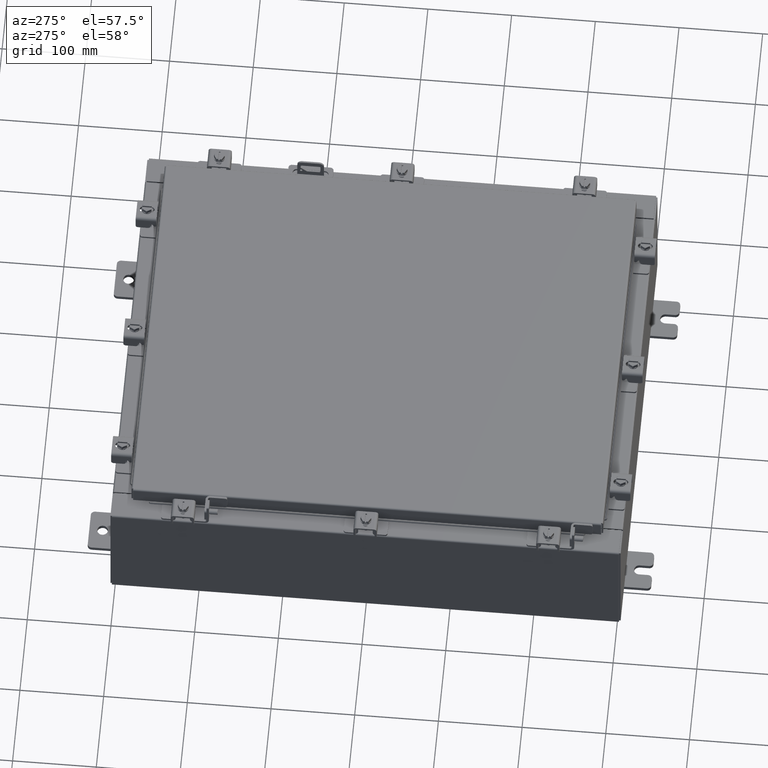
[diagram: clean part render]
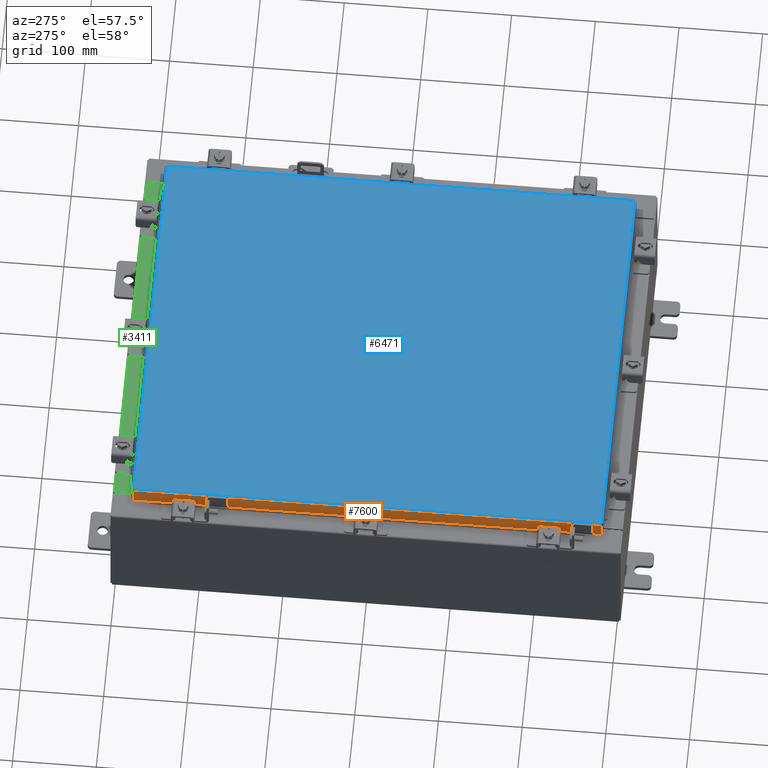
[diagram: same view with three faces highlighted in distinct colors, each labeled with its STEP entity id]
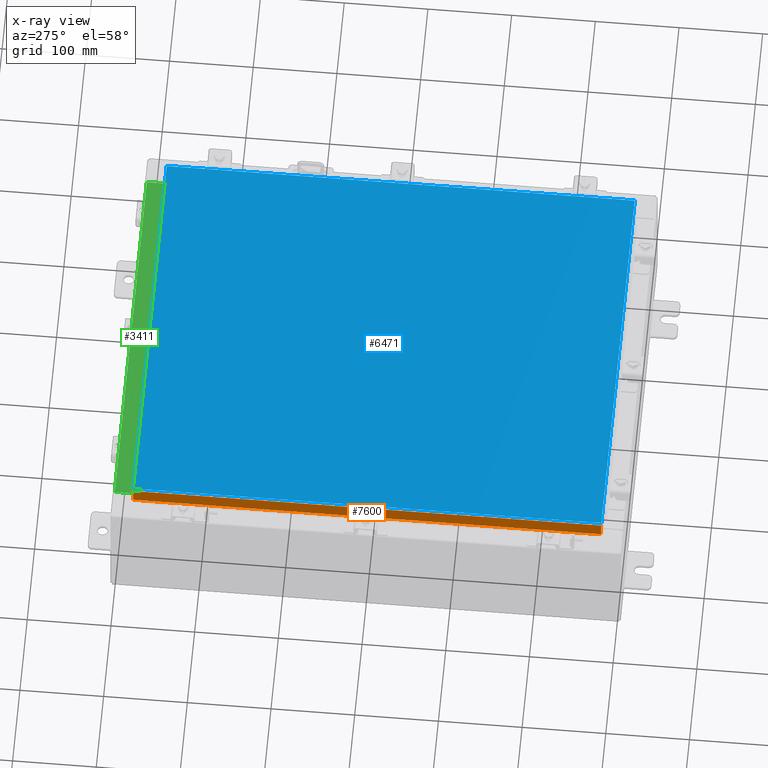
[diagram: x-ray of the same camera — body ghosted, the three highlighted faces saturated]
A machine part, auxiliary view with three faces highlighted in distinct colors.
The next image is the same camera in x-ray (body ghosted, the three faces saturated) — at least one of them is partly hidden behind the body in this view.
Their STEP definitions:

[orange] entity #7600 — the highlighted planar face has unit normal (1, 0, -0).
#241 = LINE ( 'NONE', #5001, #8937 ) ;
#369 = ORIENTED_EDGE ( 'NONE', *, *, #12093, .F. ) ;
#460 = FACE_OUTER_BOUND ( 'NONE', #7605, .T. ) ;
#490 = VERTEX_POINT ( 'NONE', #21777 ) ;
#1094 = VECTOR ( 'NONE', #21379, 39.37007874015748100 ) ;
#1200 = EDGE_CURVE ( 'NONE', #12030, #490, #4893, .T. ) ;
#1482 = EDGE_CURVE ( 'NONE', #16704, #4294, #2429, .T. ) ;
#1925 = EDGE_CURVE ( 'NONE', #22086, #15164, #6776, .T. ) ;
#2429 = LINE ( 'NONE', #11508, #4075 ) ;
#2770 = LINE ( 'NONE', #7666, #16131 ) ;
#4075 = VECTOR ( 'NONE', #11801, 39.37007874015748100 ) ;
#4294 = VERTEX_POINT ( 'NONE', #4783 ) ;
#4783 = CARTESIAN_POINT ( 'NONE',  ( -9.078000000000001200, 11.00515786437627100, -0.8499999999999970900 ) ) ;
#4893 = LINE ( 'NONE', #12579, #8975 ) ;
#5001 = CARTESIAN_POINT ( 'NONE',  ( -9.077999999999999400, -11.09400000000000100, -0.08770000000000007000 ) ) ;
#5713 = EDGE_CURVE ( 'NONE', #16704, #22086, #241, .T. ) ;
#6658 = ORIENTED_EDGE ( 'NONE', *, *, #1200, .F. ) ;
#6776 = LINE ( 'NONE', #14459, #1094 ) ;
#7600 = ADVANCED_FACE ( 'NONE', ( #460 ), #19090, .F. ) ;
#7605 = EDGE_LOOP ( 'NONE', ( #17006, #15470, #369, #6658, #13735, #20817 ) ) ;
#7666 = CARTESIAN_POINT ( 'NONE',  ( -9.078000000000001200, -11.09400000000000100, -0.8499999999999996400 ) ) ;
#7738 = DIRECTION ( 'NONE',  ( 4.379057701015054300E-047, 1.000000000000000000, 1.169666303398706600E-016 ) ) ;
#8136 = DIRECTION ( 'NONE',  ( -2.818880942772360100E-015, 0.0000000000000000000, -1.000000000000000000 ) ) ;
#8167 = CARTESIAN_POINT ( 'NONE',  ( -9.078000000000001200, -11.00515786437626700, -0.8499999999999996400 ) ) ;
#8937 = VECTOR ( 'NONE', #20702, 39.37007874015748100 ) ;
#8975 = VECTOR ( 'NONE', #16174, 39.37007874015748100 ) ;
#10373 = DIRECTION ( 'NONE',  ( 1.000000000000000000, 3.297150052053607100E-031, -2.818880942772360100E-015 ) ) ;
#10610 = AXIS2_PLACEMENT_3D ( 'NONE', #17324, #10373, #8136 ) ;
#11508 = CARTESIAN_POINT ( 'NONE',  ( -9.077999999999999400, 11.00515786437626700, 1.026992214834840400E-013 ) ) ;
#11801 = DIRECTION ( 'NONE',  ( -2.818880942772360100E-015, 6.982962677686267500E-015, -1.000000000000000000 ) ) ;
#12030 = VERTEX_POINT ( 'NONE', #18042 ) ;
#12093 = EDGE_CURVE ( 'NONE', #490, #4294, #2770, .T. ) ;
#12579 = CARTESIAN_POINT ( 'NONE',  ( -9.077999999999994100, -10.25515786437626900, -0.8500000000000005300 ) ) ;
#13735 = ORIENTED_EDGE ( 'NONE', *, *, #21028, .F. ) ;
#14459 = CARTESIAN_POINT ( 'NONE',  ( -9.077999999999999400, -11.00515786437627100, -0.07469999999999978000 ) ) ;
#15164 = VERTEX_POINT ( 'NONE', #8167 ) ;
#15461 = CARTESIAN_POINT ( 'NONE',  ( -9.077999999999999400, 11.00515786437626900, -0.08770000000000007000 ) ) ;
#15470 = ORIENTED_EDGE ( 'NONE', *, *, #1482, .T. ) ;
#16131 = VECTOR ( 'NONE', #7738, 39.37007874015748100 ) ;
#16174 = DIRECTION ( 'NONE',  ( -0.0000000000000000000, 1.000000000000000000, -0.0000000000000000000 ) ) ;
#16704 = VERTEX_POINT ( 'NONE', #15461 ) ;
#17006 = ORIENTED_EDGE ( 'NONE', *, *, #5713, .F. ) ;
#17324 = CARTESIAN_POINT ( 'NONE',  ( -9.077999999999999400, -2.993152817254264100E-030, 2.585061485449906600E-014 ) ) ;
#18042 = CARTESIAN_POINT ( 'NONE',  ( -9.077999999999994100, -10.25515786437626900, -0.8500000000000005300 ) ) ;
#19010 = VECTOR ( 'NONE', #22467, 39.37007874015748100 ) ;
#19090 = PLANE ( 'NONE',  #10610 ) ;
#20107 = LINE ( 'NONE', #20707, #19010 ) ;
#20369 = CARTESIAN_POINT ( 'NONE',  ( -9.077999999999999400, -11.00515786437626900, -0.08770000000000007000 ) ) ;
#20702 = DIRECTION ( 'NONE',  ( 3.297150052053607100E-031, -1.000000000000000000, -8.987264781119274900E-046 ) ) ;
#20707 = CARTESIAN_POINT ( 'NONE',  ( -9.078000000000001200, -11.09400000000000100, -0.8499999999999996400 ) ) ;
#20817 = ORIENTED_EDGE ( 'NONE', *, *, #1925, .F. ) ;
#21028 = EDGE_CURVE ( 'NONE', #15164, #12030, #20107, .T. ) ;
#21379 = DIRECTION ( 'NONE',  ( -2.818880942772360100E-015, 6.982962677686267500E-015, -1.000000000000000000 ) ) ;
#21777 = CARTESIAN_POINT ( 'NONE',  ( -9.077999999999994100, 10.25515786437626900, -0.8500000000000005300 ) ) ;
#22086 = VERTEX_POINT ( 'NONE', #20369 ) ;
#22467 = DIRECTION ( 'NONE',  ( 4.379057701015054300E-047, 1.000000000000000000, 1.169666303398706600E-016 ) ) ;

[blue] entity #6471 — the highlighted planar face has unit normal (0, 0, -1).
#155 = CARTESIAN_POINT ( 'NONE',  ( -8.990299999999999500, 11.00630000000000100, -2.048885995248197400E-016 ) ) ;
#3018 = AXIS2_PLACEMENT_3D ( 'NONE', #5051, #3353, #15566 ) ;
#3353 = DIRECTION ( 'NONE',  ( 0.0000000000000000000, 0.0000000000000000000, -1.000000000000000000 ) ) ;
#3742 = EDGE_CURVE ( 'NONE', #4213, #4799, #5200, .T. ) ;
#4213 = VERTEX_POINT ( 'NONE', #9310 ) ;
#4304 = LINE ( 'NONE', #16803, #8916 ) ;
#4638 = CARTESIAN_POINT ( 'NONE',  ( -8.990299999999999500, -11.00630000000000100, -2.048885995248197400E-016 ) ) ;
#4799 = VERTEX_POINT ( 'NONE', #19783 ) ;
#5051 = CARTESIAN_POINT ( 'NONE',  ( 0.0000000000000000000, 0.0000000000000000000, 0.0000000000000000000 ) ) ;
#5200 = LINE ( 'NONE', #4638, #13932 ) ;
#5459 = VECTOR ( 'NONE', #17495, 39.37007874015748100 ) ;
#6009 = CARTESIAN_POINT ( 'NONE',  ( -8.990299999999999500, 11.00630000000000100, -2.048885995248197400E-016 ) ) ;
#6288 = EDGE_CURVE ( 'NONE', #4799, #6451, #4304, .T. ) ;
#6387 = DIRECTION ( 'NONE',  ( 1.000000000000000000, -0.0000000000000000000, -0.0000000000000000000 ) ) ;
#6451 = VERTEX_POINT ( 'NONE', #12050 ) ;
#6471 = ADVANCED_FACE ( 'NONE', ( #10818 ), #13817, .F. ) ;
#8916 = VECTOR ( 'NONE', #11606, 39.37007874015748100 ) ;
#9310 = CARTESIAN_POINT ( 'NONE',  ( -8.990299999999999500, -11.00630000000000100, -2.048885995248197400E-016 ) ) ;
#10333 = CARTESIAN_POINT ( 'NONE',  ( 8.990299999999999500, 11.00630000000000000, -2.048885995248197400E-016 ) ) ;
#10818 = FACE_OUTER_BOUND ( 'NONE', #14401, .T. ) ;
#11606 = DIRECTION ( 'NONE',  ( 0.0000000000000000000, 1.000000000000000000, 0.0000000000000000000 ) ) ;
#12050 = CARTESIAN_POINT ( 'NONE',  ( 8.990299999999999500, 11.00630000000000000, -2.048885995248197400E-016 ) ) ;
#12069 = VERTEX_POINT ( 'NONE', #6009 ) ;
#13817 = PLANE ( 'NONE',  #3018 ) ;
#13932 = VECTOR ( 'NONE', #6387, 39.37007874015748100 ) ;
#14401 = EDGE_LOOP ( 'NONE', ( #21981, #22430, #21329, #19484 ) ) ;
#15566 = DIRECTION ( 'NONE',  ( -1.000000000000000000, 0.0000000000000000000, -0.0000000000000000000 ) ) ;
#16741 = EDGE_CURVE ( 'NONE', #6451, #12069, #18388, .T. ) ;
#16803 = CARTESIAN_POINT ( 'NONE',  ( 8.990299999999999500, -11.00630000000000000, -7.512581982576723400E-016 ) ) ;
#17495 = DIRECTION ( 'NONE',  ( 0.0000000000000000000, -1.000000000000000000, 0.0000000000000000000 ) ) ;
#17840 = VECTOR ( 'NONE', #22557, 39.37007874015748100 ) ;
#18388 = LINE ( 'NONE', #10333, #17840 ) ;
#19069 = EDGE_CURVE ( 'NONE', #12069, #4213, #20143, .T. ) ;
#19484 = ORIENTED_EDGE ( 'NONE', *, *, #19069, .T. ) ;
#19783 = CARTESIAN_POINT ( 'NONE',  ( 8.990299999999999500, -11.00630000000000000, -7.512581982576723400E-016 ) ) ;
#20143 = LINE ( 'NONE', #155, #5459 ) ;
#21329 = ORIENTED_EDGE ( 'NONE', *, *, #16741, .T. ) ;
#21981 = ORIENTED_EDGE ( 'NONE', *, *, #3742, .T. ) ;
#22430 = ORIENTED_EDGE ( 'NONE', *, *, #6288, .T. ) ;
#22557 = DIRECTION ( 'NONE',  ( -1.000000000000000000, -0.0000000000000000000, -0.0000000000000000000 ) ) ;

[green] entity #3411 — the highlighted planar face has unit normal (0, 0, 1).
#54 = CARTESIAN_POINT ( 'NONE',  ( -8.637200000000000000, -1.287299999999999200, 3.000000000000005300 ) ) ;
#562 = EDGE_CURVE ( 'NONE', #10183, #17778, #15298, .T. ) ;
#1601 = CARTESIAN_POINT ( 'NONE',  ( 8.637200000000000000, -1.300299999999999800, 3.000000000000005300 ) ) ;
#2881 = CARTESIAN_POINT ( 'NONE',  ( -8.637200000000000000, -0.07469999999999973900, 3.000000000000000900 ) ) ;
#3252 = CARTESIAN_POINT ( 'NONE',  ( 0.0000000000000000000, 1.069354855923099900E-014, 3.000000000000000900 ) ) ;
#3411 = ADVANCED_FACE ( 'NONE', ( #11220 ), #22479, .T. ) ;
#3748 = EDGE_CURVE ( 'NONE', #7664, #9379, #18570, .T. ) ;
#3893 = EDGE_LOOP ( 'NONE', ( #17882, #22382, #9727, #14564 ) ) ;
#4660 = VECTOR ( 'NONE', #22014, 39.37007874015748100 ) ;
#5103 = DIRECTION ( 'NONE',  ( 0.0000000000000000000, 3.566381192773190000E-015, 1.000000000000000000 ) ) ;
#7429 = CARTESIAN_POINT ( 'NONE',  ( 8.637200000000000000, -1.287299999999999900, 3.000000000000005300 ) ) ;
#7480 = AXIS2_PLACEMENT_3D ( 'NONE', #3252, #5103, #17272 ) ;
#7664 = VERTEX_POINT ( 'NONE', #54 ) ;
#7686 = EDGE_CURVE ( 'NONE', #10183, #9379, #21973, .T. ) ;
#9379 = VERTEX_POINT ( 'NONE', #10171 ) ;
#9727 = ORIENTED_EDGE ( 'NONE', *, *, #562, .F. ) ;
#10083 = VECTOR ( 'NONE', #15112, 39.37007874015748100 ) ;
#10171 = CARTESIAN_POINT ( 'NONE',  ( -8.637200000000000000, -0.08770000000000000000, 3.000000000000000900 ) ) ;
#10183 = VERTEX_POINT ( 'NONE', #20910 ) ;
#10342 = VECTOR ( 'NONE', #17872, 39.37007874015748100 ) ;
#10456 = CARTESIAN_POINT ( 'NONE',  ( 8.637200000000000000, -1.287299999999999900, 3.000000000000005300 ) ) ;
#11220 = FACE_OUTER_BOUND ( 'NONE', #3893, .T. ) ;
#12296 = CARTESIAN_POINT ( 'NONE',  ( -2.773851121247453900E-018, -0.08770000000000000000, 3.000000000000001300 ) ) ;
#14482 = LINE ( 'NONE', #7429, #10342 ) ;
#14564 = ORIENTED_EDGE ( 'NONE', *, *, #7686, .T. ) ;
#15112 = DIRECTION ( 'NONE',  ( -0.0000000000000000000, -1.000000000000000000, 3.566381192773190000E-015 ) ) ;
#15298 = LINE ( 'NONE', #1601, #10083 ) ;
#17272 = DIRECTION ( 'NONE',  ( 0.0000000000000000000, -1.000000000000000000, 3.566381192773190000E-015 ) ) ;
#17306 = VECTOR ( 'NONE', #21005, 39.37007874015748100 ) ;
#17778 = VERTEX_POINT ( 'NONE', #10456 ) ;
#17872 = DIRECTION ( 'NONE',  ( -1.000000000000000000, 0.0000000000000000000, 0.0000000000000000000 ) ) ;
#17882 = ORIENTED_EDGE ( 'NONE', *, *, #3748, .F. ) ;
#17942 = EDGE_CURVE ( 'NONE', #17778, #7664, #14482, .T. ) ;
#18570 = LINE ( 'NONE', #2881, #4660 ) ;
#20910 = CARTESIAN_POINT ( 'NONE',  ( 8.637200000000000000, -0.08769999999999965300, 3.000000000000000900 ) ) ;
#21005 = DIRECTION ( 'NONE',  ( -1.000000000000000000, 3.162886113166609200E-017, -1.128005754888089100E-031 ) ) ;
#21973 = LINE ( 'NONE', #12296, #17306 ) ;
#22014 = DIRECTION ( 'NONE',  ( -0.0000000000000000000, 1.000000000000000000, -3.566381192773190000E-015 ) ) ;
#22382 = ORIENTED_EDGE ( 'NONE', *, *, #17942, .F. ) ;
#22479 = PLANE ( 'NONE',  #7480 ) ;